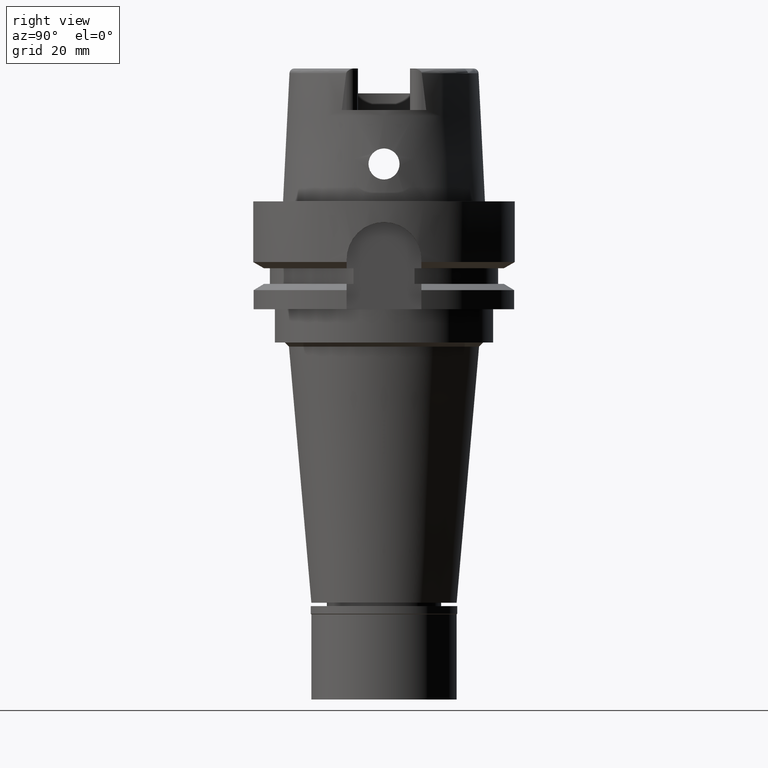
[diagram: clean part render]
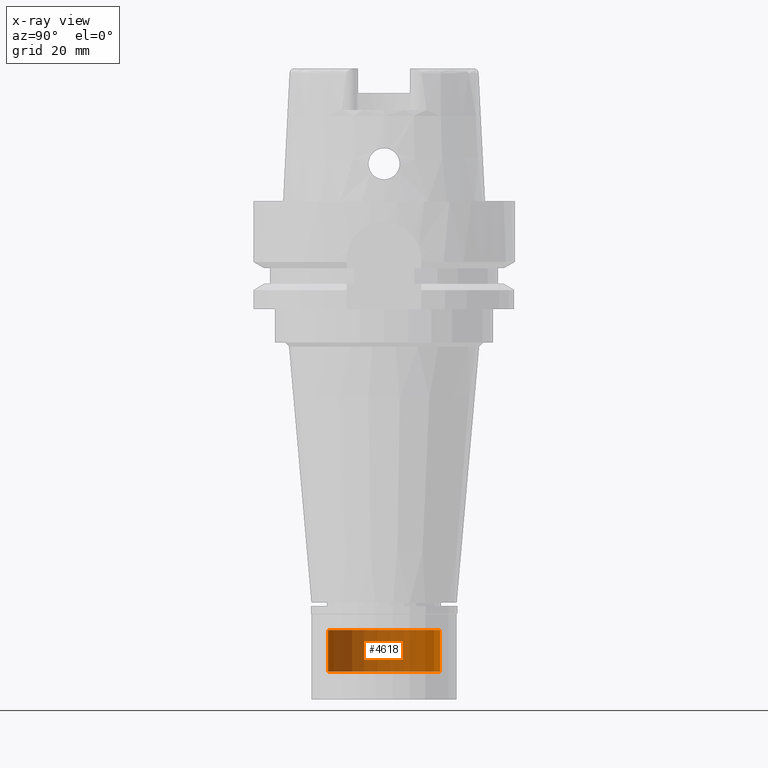
[diagram: x-ray — body ghosted, one internal face saturated and labeled with its STEP entity id]
A machine part, right view, then the same camera in x-ray: the body is ghosted and one INTERNAL B-rep face — a face not visible from any outside direction — is saturated and labeled: STEP entity #4618.
In plain terms, the highlighted cylindrical surface (partial cylindrical patch) has radius 13.5 mm, axis along (0, 0, 1).
Its self-contained STEP definition (entity closure, byte-faithful):
#167 = CARTESIAN_POINT ( 'NONE',  ( 0.0000000000000000000, 0.0000000000000000000, -103.2999999999999972 ) ) ;
#244 = CYLINDRICAL_SURFACE ( 'NONE', #5208, 13.50000000000000000 ) ;
#629 = CARTESIAN_POINT ( 'NONE',  ( 0.0000000000000000000, -13.50000000000000000, -113.2999999999999972 ) ) ;
#1134 = AXIS2_PLACEMENT_3D ( 'NONE', #1434, #4338, #4801 ) ;
#1434 = CARTESIAN_POINT ( 'NONE',  ( 0.0000000000000000000, 0.0000000000000000000, -113.2999999999999972 ) ) ;
#1835 = CARTESIAN_POINT ( 'NONE',  ( 0.0000000000000000000, 13.50000000000000000, -103.2999999999999972 ) ) ;
#1886 = ORIENTED_EDGE ( 'NONE', *, *, #5453, .F. ) ;
#1900 = EDGE_CURVE ( 'NONE', #2701, #2407, #2726, .T. ) ;
#1920 = CARTESIAN_POINT ( 'NONE',  ( 0.0000000000000000000, 0.0000000000000000000, 0.0000000000000000000 ) ) ;
#2035 = CARTESIAN_POINT ( 'NONE',  ( 0.0000000000000000000, 13.50000000000000000, -113.2999999999999972 ) ) ;
#2167 = ORIENTED_EDGE ( 'NONE', *, *, #4233, .T. ) ;
#2407 = VERTEX_POINT ( 'NONE', #2035 ) ;
#2422 = DIRECTION ( 'NONE',  ( 0.0000000000000000000, 0.0000000000000000000, -1.000000000000000000 ) ) ;
#2540 = ORIENTED_EDGE ( 'NONE', *, *, #2742, .T. ) ;
#2701 = VERTEX_POINT ( 'NONE', #1835 ) ;
#2726 = LINE ( 'NONE', #5276, #4431 ) ;
#2742 = EDGE_CURVE ( 'NONE', #3482, #2701, #4386, .T. ) ;
#2770 = VERTEX_POINT ( 'NONE', #629 ) ;
#3147 = ORIENTED_EDGE ( 'NONE', *, *, #1900, .T. ) ;
#3207 = CARTESIAN_POINT ( 'NONE',  ( 0.0000000000000000000, -13.50000000000000000, -103.2999999999999972 ) ) ;
#3263 = CARTESIAN_POINT ( 'NONE',  ( 0.0000000000000000000, -13.50000000000000000, -103.2999999999999972 ) ) ;
#3425 = CIRCLE ( 'NONE', #1134, 13.50000000000000000 ) ;
#3482 = VERTEX_POINT ( 'NONE', #3263 ) ;
#3571 = DIRECTION ( 'NONE',  ( 0.0000000000000000000, 0.0000000000000000000, -1.000000000000000000 ) ) ;
#3598 = DIRECTION ( 'NONE',  ( 0.0000000000000000000, 0.0000000000000000000, 1.000000000000000000 ) ) ;
#3998 = FACE_OUTER_BOUND ( 'NONE', #5247, .T. ) ;
#4010 = AXIS2_PLACEMENT_3D ( 'NONE', #167, #3571, #5218 ) ;
#4233 = EDGE_CURVE ( 'NONE', #2407, #2770, #3425, .T. ) ;
#4338 = DIRECTION ( 'NONE',  ( 0.0000000000000000000, 0.0000000000000000000, 1.000000000000000000 ) ) ;
#4386 = CIRCLE ( 'NONE', #4010, 13.50000000000000000 ) ;
#4431 = VECTOR ( 'NONE', #5254, 1000.000000000000000 ) ;
#4508 = VECTOR ( 'NONE', #2422, 1000.000000000000000 ) ;
#4618 = ADVANCED_FACE ( 'NONE', ( #3998 ), #244, .T. ) ;
#4801 = DIRECTION ( 'NONE',  ( 0.0000000000000000000, 1.000000000000000000, 0.0000000000000000000 ) ) ;
#4888 = LINE ( 'NONE', #3207, #4508 ) ;
#5208 = AXIS2_PLACEMENT_3D ( 'NONE', #1920, #3598, #5304 ) ;
#5218 = DIRECTION ( 'NONE',  ( 0.0000000000000000000, -1.000000000000000000, 0.0000000000000000000 ) ) ;
#5247 = EDGE_LOOP ( 'NONE', ( #2167, #1886, #2540, #3147 ) ) ;
#5254 = DIRECTION ( 'NONE',  ( 0.0000000000000000000, 0.0000000000000000000, -1.000000000000000000 ) ) ;
#5276 = CARTESIAN_POINT ( 'NONE',  ( 0.0000000000000000000, 13.50000000000000000, -103.2999999999999972 ) ) ;
#5304 = DIRECTION ( 'NONE',  ( 0.0000000000000000000, 1.000000000000000000, 0.0000000000000000000 ) ) ;
#5453 = EDGE_CURVE ( 'NONE', #3482, #2770, #4888, .T. ) ;